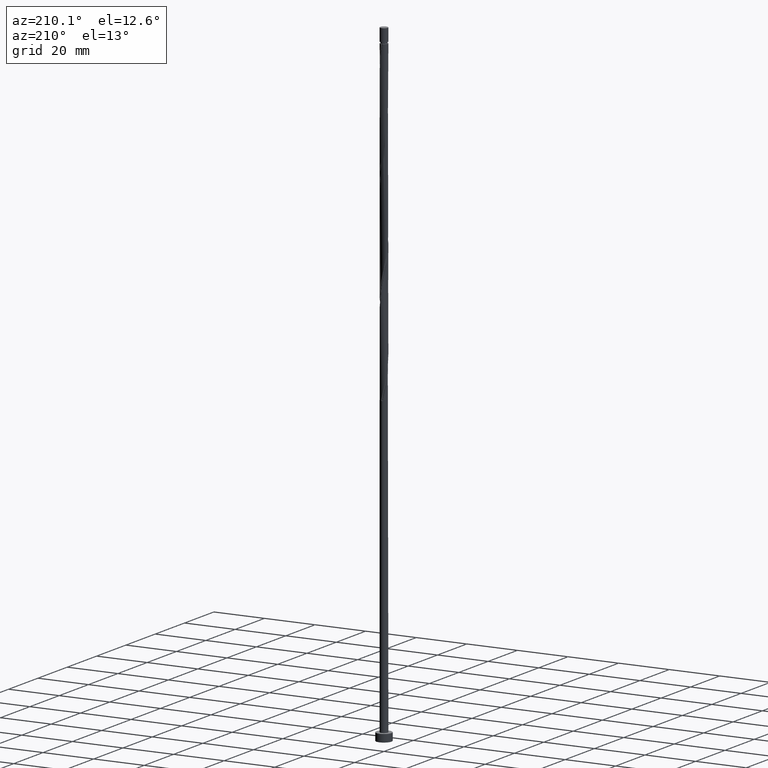
[diagram: clean part render]
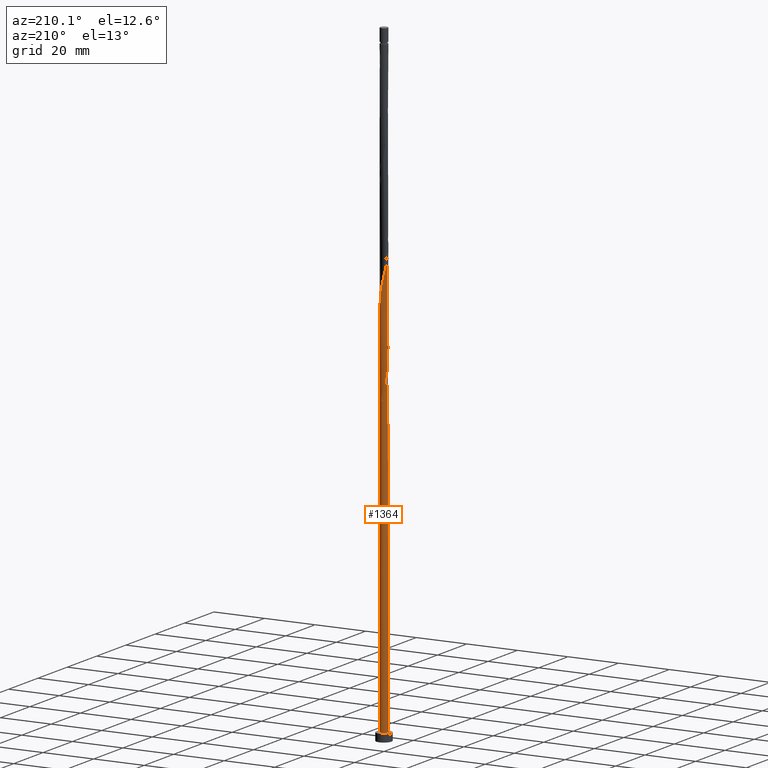
[diagram: same view with one face highlighted and labeled with its STEP entity id]
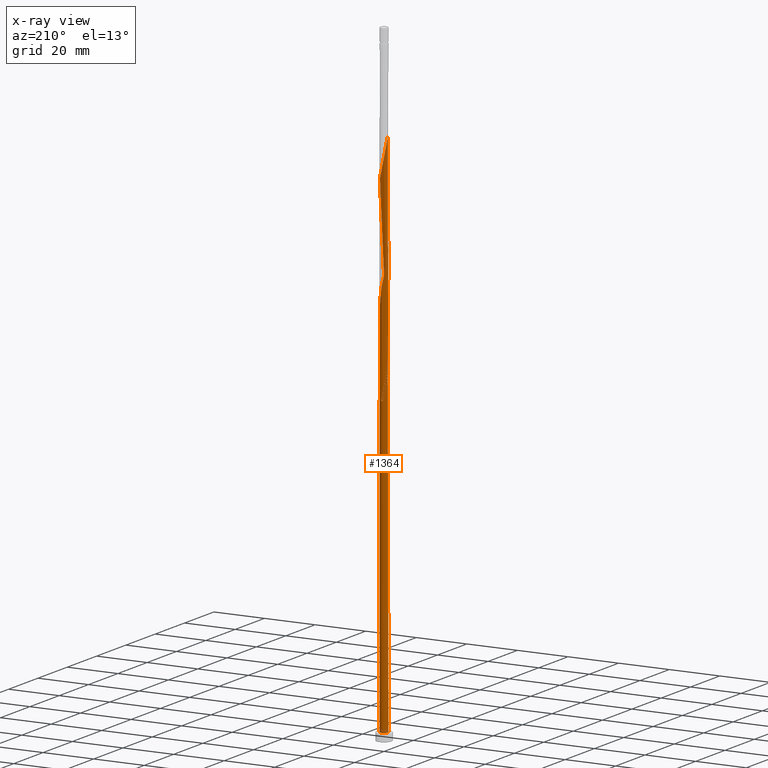
[diagram: x-ray of the same camera — body ghosted, the highlighted face saturated]
A machine part, auxiliary view. The second image highlights one B-rep face of the part: STEP entity #1364.
The next image is the same camera in x-ray: the body ghosted, the highlighted face saturated — about 0% of this face is hidden behind the body in this view.
In plain terms, the highlighted cylindrical surface (bore or boss wall) has radius 1.5 mm, axis along (-0, -0, -1).
Its self-contained STEP definition (entity closure, byte-faithful):
#9 =( BOUNDED_CURVE ( )  B_SPLINE_CURVE ( 2, ( #408, #1478, #1241, #603, #716, #79, #1516, #736, #1252, #320, #725, #1271, #1670, #481, #852, #1526, #1261, #1003, #1365, #696, #459, #1383, #1113, #1512, #1086, #197, #158, #982, #831, #295, #842, #590, #187, #433, #315, #1501, #304, #1258, #67, #820, #168, #1639, #1099, #176, #704, #1236, #45, #1491, #1359, #34, #568, #702, #959, #1096, #1499, #1110, #984, #822, #1238, #592, #1362, #572, #1373, #56, #962, #1088, #833, #47, #1115, #317, #343, #1324, #1410, #474, #340, #31, #618, #1677, #636, #1707, #1069, #924, #1320, #522, #249, #1188, #110, #530, #1051, #260, #894, #132, #263, #1195, #1521, #1596, #17, #923, #1614, #194, #1380, #720, #1719, #1466, #405, #1334, #597 ),
 .UNSPECIFIED., .F., .T. ) 
 B_SPLINE_CURVE_WITH_KNOTS ( ( 3, 2, 2, 2, 2, 2, 2, 2, 2, 2, 2, 2, 2, 2, 2, 2, 2, 2, 2, 2, 2, 2, 2, 2, 2, 2, 2, 2, 2, 2, 2, 2, 2, 2, 2, 2, 2, 2, 2, 2, 2, 2, 2, 2, 2, 2, 2, 2, 2, 2, 2, 2, 2, 3 ),
 ( 0.05452716259738311227, 0.05769230769230770939, 0.06730769230769229061, 0.07692307692307687184, 0.08653846153846156408, 0.09615384615384614531, 0.1057692307692307265, 0.1153846153846154188, 0.1250000000000000000, 0.1346153846153845812, 0.1442307692307692735, 0.1538461538461538547, 0.1634615384615384359, 0.1730769230769231282, 0.1826923076923077094, 0.1923076923076922906, 0.2019230769230768718, 0.2115384615384615641, 0.2211538461538461453, 0.2307692307692307265, 0.2403846153846154188, 0.2500000000000000000, 0.2596153846153845812, 0.2692307692307692735, 0.2788461538461538547, 0.2884615384615384359, 0.2980769230769231282, 0.3076923076923077094, 0.3173076923076922906, 0.3269230769230768718, 0.3365384615384615641, 0.3461538461538461453, 0.3557692307692307265, 0.3653846153846154188, 0.3750000000000000000, 0.3846153846153845812, 0.3942307692307692735, 0.4038461538461538547, 0.4134615384615384359, 0.4230769230769231282, 0.4326923076923077094, 0.4423076923076922906, 0.4519230769230768718, 0.4615384615384615641, 0.4711538461538461453, 0.4807692307692307265, 0.4903846153846154188, 0.5000000000000000000, 0.5096153846153845812, 0.5192307692307691624, 0.5288461538461538547, 0.5384615384615384359, 0.5480769230769231282, 0.5545271625973832164 ),
 .UNSPECIFIED. ) 
 CURVE ( )  GEOMETRIC_REPRESENTATION_ITEM ( )  RATIONAL_B_SPLINE_CURVE ( ( 0.9061636035683167112, 0.9069090390691052495, 0.9090909090909620183, 0.9024626128164653371, 0.9090909090909620183, 0.9024626128164653371, 0.9090909090909620183, 0.9024626128164653371, 0.9090909090909620183, 0.9024626128164653371, 0.9090909090909620183, 0.9024626128164653371, 0.9090909090909620183, 0.9024626128164653371, 0.9090909090909620183, 0.9024626128164653371, 0.9090909090909620183, 0.9024626128164653371, 0.9090909090909620183, 0.9024626128164653371, 0.9090909090909620183, 0.9024626128164653371, 0.9090909090909620183, 0.9024626128164653371, 0.9090909090909620183, 0.9024626128164653371, 0.9090909090909620183, 0.9024626128164653371, 0.9090909090909620183, 0.9024626128164653371, 0.9090909090909620183, 0.9024626128164653371, 0.9090909090909620183, 0.9024626128164653371, 0.9090909090909620183, 0.9024626128164653371, 0.9090909090909620183, 0.9024626128164653371, 0.9090909090909620183, 0.9024626128164653371, 0.9090909090909620183, 0.9024626128164653371, 0.9090909090909620183, 0.9024626128164653371, 0.9090909090909620183, 0.9024626128164653371, 0.9090909090909620183, 0.9024626128164653371, 0.9090909090909620183, 0.9024626128164653371, 0.9090909090909620183, 0.9024626128164653371, 0.9090909090909620183, 0.9024626128164653371, 0.9090909090909620183, 0.9024626128164653371, 0.9090909090909620183, 0.9024626128164653371, 0.9090909090909620183, 0.9024626128164653371, 0.9090909090909620183, 0.9024626128164653371, 0.9090909090909620183, 0.9024626128164653371, 0.9090909090909620183, 0.9024626128164653371, 0.9090909090909620183, 0.9024626128164653371, 0.9090909090909620183, 0.9024626128164653371, 0.9090909090909620183, 0.9024626128164653371, 0.9090909090909620183, 0.9024626128164653371, 0.9090909090909620183, 0.9024626128164653371, 0.9090909090909620183, 0.9024626128164653371, 0.9090909090909620183, 0.9024626128164653371, 0.9090909090909620183, 0.9024626128164653371, 0.9090909090909620183, 0.9024626128164653371, 0.9090909090909620183, 0.9024626128164653371, 0.9090909090909620183, 0.9024626128164653371, 0.9090909090909620183, 0.9024626128164653371, 0.9090909090909620183, 0.9024626128164653371, 0.9090909090909620183, 0.9024626128164653371, 0.9090909090909620183, 0.9024626128164653371, 0.9090909090909620183, 0.9024626128164653371, 0.9090909090909620183, 0.9024626128164653371, 0.9090909090909620183, 0.9024626128164653371, 0.9090909090909620183, 0.9024626128164653371, 0.9090909090909620183, 0.9046444828383219949, 0.9061636035683167112 ) ) 
 REPRESENTATION_ITEM ( '' )  );
#17 = CARTESIAN_POINT ( 'NONE',  ( -0.6416164996528295195, 1.355849647775614342, 204.3651243439056486 ) ) ;
#19 = CARTESIAN_POINT ( 'NONE',  ( -0.4188377764137478643, 1.440338473084985527, 122.6343551131364080 ) ) ;
#25 = ORIENTED_EDGE ( 'NONE', *, *, #371, .F. ) ;
#31 = CARTESIAN_POINT ( 'NONE',  ( 1.307785643856739455, -0.7568811863455723321, 187.5382012669825826 ) ) ;
#34 = CARTESIAN_POINT ( 'NONE',  ( -1.307785643856739455, 0.7568811863455717770, 166.7048679336491830 ) ) ;
#45 = CARTESIAN_POINT ( 'NONE',  ( -0.9474483493949323876, 1.162902242335452918, 164.3010217798030794 ) ) ;
#47 = CARTESIAN_POINT ( 'NONE',  ( 0.1200059157952639288, -1.506244004368417988, 181.1279448567262023 ) ) ;
#56 = CARTESIAN_POINT ( 'NONE',  ( -0.5937265303270506944, -1.389482359624428121, 177.9228166515979126 ) ) ;
#61 = EDGE_CURVE ( 'NONE', #1239, #570, #445, .T. ) ;
#67 = CARTESIAN_POINT ( 'NONE',  ( 0.4188377764137496961, 1.440338473084987303, 157.8907653695467275 ) ) ;
#79 = CARTESIAN_POINT ( 'NONE',  ( -1.365807925316976146, -0.6463289655144700552, 131.4484576772389914 ) ) ;
#81 = DIRECTION ( 'NONE',  ( -0.000000000000000000, -0.000000000000000000, -1.000000000000000000 ) ) ;
#110 = CARTESIAN_POINT ( 'NONE',  ( 1.040221096925479927, 1.080712759946489854, 196.3523038310851518 ) ) ;
#128 = DIRECTION ( 'NONE',  ( -1.000000000000000000, 0.000000000000000000, 0.000000000000000000 ) ) ;
#132 = CARTESIAN_POINT ( 'NONE',  ( 0.2439490225004475321, 1.491194586545546708, 200.3587140874954287 ) ) ;
#158 = CARTESIAN_POINT ( 'NONE',  ( 1.480322099070742858, -0.2421703594637400481, 148.2753807541620006 ) ) ;
#164 = CARTESIAN_POINT ( 'NONE',  ( -1.480322099070742858, 0.2421703594637399370, 127.4420474208287146 ) ) ;
#168 = CARTESIAN_POINT ( 'NONE',  ( 0.06197155335259257880, 1.498719295456981904, 159.4933294721108155 ) ) ;
#176 = CARTESIAN_POINT ( 'NONE',  ( -0.4769865464687110257, 1.433755995631585511, 161.8971756259569190 ) ) ;
#180 = DIRECTION ( 'NONE',  ( 1.000000000000000000, 0.000000000000000000, 0.000000000000000000 ) ) ;
#183 = CARTESIAN_POINT ( 'NONE',  ( -0.2984962311319874773, 1.470000000000002416, 119.4292269080082178 ) ) ;
#185 = VERTEX_POINT ( 'NONE', #183 ) ;
#187 = CARTESIAN_POINT ( 'NONE',  ( 1.268625654424380134, 0.8003680084413162810, 153.0830730618543498 ) ) ;
#194 = CARTESIAN_POINT ( 'NONE',  ( -1.088650245952916817, 1.047861184751263330, 206.7689704977517806 ) ) ;
#197 = CARTESIAN_POINT ( 'NONE',  ( 1.450917293747007619, -0.4219140045406496453, 147.4740987028800419 ) ) ;
#203 = DIRECTION ( 'NONE',  ( 1.000000000000000000, 0.000000000000000000, 0.000000000000000000 ) ) ;
#249 = CARTESIAN_POINT ( 'NONE',  ( 1.268625654424380134, 0.8003680084413162810, 194.7497397285210639 ) ) ;
#260 = CARTESIAN_POINT ( 'NONE',  ( 0.5937265303270506944, 1.389482359624428121, 198.7561499849313122 ) ) ;
#263 = CARTESIAN_POINT ( 'NONE',  ( 0.06197155335259257880, 1.498719295456981904, 201.1599961387775011 ) ) ;
#274 = EDGE_CURVE ( 'NONE', #580, #1360, #9, .T. ) ;
#287 = ORIENTED_EDGE ( 'NONE', *, *, #1582, .F. ) ;
#295 = CARTESIAN_POINT ( 'NONE',  ( 1.480796674992555850, 0.3006885894952761595, 150.6792269080081894 ) ) ;
#304 = CARTESIAN_POINT ( 'NONE',  ( 0.7513626703231125470, 1.298250414074622272, 156.2882012669825542 ) ) ;
#315 = CARTESIAN_POINT ( 'NONE',  ( 1.040221096925479927, 1.080712759946489854, 154.6856371644184662 ) ) ;
#317 = CARTESIAN_POINT ( 'NONE',  ( 0.4769865464687106371, -1.433755995631585511, 182.7305089592902618 ) ) ;
#320 = CARTESIAN_POINT ( 'NONE',  ( -0.9089988103191739555, -1.207018468524816424, 134.6535858823671958 ) ) ;
#340 = CARTESIAN_POINT ( 'NONE',  ( 1.198217944904827581, -0.9023711855484176647, 186.7369192157005386 ) ) ;
#343 = CARTESIAN_POINT ( 'NONE',  ( 0.6416164996528290754, -1.355849647775614786, 183.5317910105723627 ) ) ;
#357 = VERTEX_POINT ( 'NONE', #1656 ) ;
#371 = EDGE_CURVE ( 'NONE', #580, #570, #1611, .T. ) ;
#380 = LINE ( 'NONE', #648, #1089 ) ;
#392 = CARTESIAN_POINT ( 'NONE',  ( -0.2439490225004463386, 1.491194586545544043, 121.8330730618543356 ) ) ;
#400 = CARTESIAN_POINT ( 'NONE',  ( -1.198217944904828025, 0.9023711855484176647, 124.2369192157005386 ) ) ;
#405 = CARTESIAN_POINT ( 'NONE',  ( -1.480322099070742858, 0.2421703594637399370, 210.7753807541620859 ) ) ;
#407 = CARTESIAN_POINT ( 'NONE',  ( -1.268625654424377913, 0.8003680084413155038, 127.4420474208287146 ) ) ;
#408 = CARTESIAN_POINT ( 'NONE',  ( -1.500000000000002220, -1.802190593260978711E-15, 128.5179716987830147 ) ) ;
#410 = CARTESIAN_POINT ( 'NONE',  ( -1.450917293747007619, 0.4219140045406489237, 126.6407653695466564 ) ) ;
#417 = CARTESIAN_POINT ( 'NONE',  ( -1.040221096925477262, 1.080712759946488521, 125.8394833182646266 ) ) ;
#420 = CARTESIAN_POINT ( 'NONE',  ( -0.4769865464687110257, 1.433755995631585511, 120.2305089592902760 ) ) ;
#423 = DIRECTION ( 'NONE',  ( -0.000000000000000000, -0.000000000000000000, -1.000000000000000000 ) ) ;
#428 = CARTESIAN_POINT ( 'NONE',  ( -0.8062464528369477357, 1.277943299919642950, 121.8330730618543782 ) ) ;
#433 = CARTESIAN_POINT ( 'NONE',  ( 1.171443383531785010, 0.9544070513681620627, 153.8843551131363938 ) ) ;
#445 = CIRCLE ( 'NONE', #504, 1.500000000000000222 ) ;
#459 = CARTESIAN_POINT ( 'NONE',  ( 0.9474483493949322765, -1.162902242335452918, 143.4676884464697935 ) ) ;
#474 = CARTESIAN_POINT ( 'NONE',  ( 1.088650245952916595, -1.047861184751263552, 185.9356371644184378 ) ) ;
#481 = CARTESIAN_POINT ( 'NONE',  ( -0.2439490225004473933, -1.491194586545546708, 137.8587140874954002 ) ) ;
#504 = AXIS2_PLACEMENT_3D ( 'NONE', #569, #1097, #203 ) ;
#522 = CARTESIAN_POINT ( 'NONE',  ( 1.365807925316976146, 0.6463289655144695001, 193.9484576772389630 ) ) ;
#530 = CARTESIAN_POINT ( 'NONE',  ( 0.9089988103191743996, 1.207018468524815757, 197.1535858823671674 ) ) ;
#531 = CARTESIAN_POINT ( 'NONE',  ( 0.1200059157952646366, 1.506244004368415768, 120.2305089592902618 ) ) ;
#568 = CARTESIAN_POINT ( 'NONE',  ( -1.379351468801873315, 0.5893975954431104336, 167.5061499849313122 ) ) ;
#569 = CARTESIAN_POINT ( 'NONE',  ( 0.000000000000000000, 0.000000000000000000, 3.000000000000000000 ) ) ;
#570 = VERTEX_POINT ( 'NONE', #579 ) ;
#572 = CARTESIAN_POINT ( 'NONE',  ( -0.9089988103191739555, -1.207018468524816424, 176.3202525490338246 ) ) ;
#579 = CARTESIAN_POINT ( 'NONE',  ( -1.500000000000000222, 0.000000000000000000, 3.000000000000000000 ) ) ;
#580 = VERTEX_POINT ( 'NONE', #1412 ) ;
#583 = ORIENTED_EDGE ( 'NONE', *, *, #1058, .T. ) ;
#590 = CARTESIAN_POINT ( 'NONE',  ( 1.365807925316976146, 0.6463289655144695001, 152.2817910105723627 ) ) ;
#592 = CARTESIAN_POINT ( 'NONE',  ( -1.171443383531784788, -0.9544070513681625068, 174.7176884464697935 ) ) ;
#597 = CARTESIAN_POINT ( 'NONE',  ( -1.500000000000002220, -4.112883096653684897E-16, 211.8513050321163291 ) ) ;
#603 = CARTESIAN_POINT ( 'NONE',  ( -1.480796674992555850, -0.3006885894952763261, 129.8458935746749034 ) ) ;
#618 = CARTESIAN_POINT ( 'NONE',  ( 1.379351468801873315, -0.5893975954431104336, 188.3394833182646551 ) ) ;
#619 =( BOUNDED_CURVE ( )  B_SPLINE_CURVE ( 2, ( #925, #813, #916, #807, #1467, #666, #407, #683, #417, #1214, #1606, #1337, #19, #392, #1598, #531, #940 ),
 .UNSPECIFIED., .F., .T. ) 
 B_SPLINE_CURVE_WITH_KNOTS ( ( 3, 2, 2, 2, 2, 2, 2, 2, 3 ),
 ( 0.9295271625973829943, 0.9326923076923077094, 0.9423076923076922906, 0.9519230769230768718, 0.9615384615384615641, 0.9711538461538461453, 0.9807692307692307265, 0.9903846153846154188, 1.000000000000000000 ),
 .UNSPECIFIED. ) 
 CURVE ( )  GEOMETRIC_REPRESENTATION_ITEM ( )  RATIONAL_B_SPLINE_CURVE ( ( 0.9061636035683109380, 0.9069090390690994763, 0.9090909090909563561, 0.9024626128164596750, 0.9090909090909563561, 0.9024626128164596750, 0.9090909090909563561, 0.9024626128164596750, 0.9090909090909563561, 0.9024626128164596750, 0.9090909090909563561, 0.9024626128164596750, 0.9090909090909563561, 0.9024626128164596750, 0.9090909090909563561, 0.9024626128164596750, 0.9090909090909563561 ) ) 
 REPRESENTATION_ITEM ( '' )  );
#623 = DIRECTION ( 'NONE',  ( -0.000000000000000000, -0.000000000000000000, -1.000000000000000000 ) ) ;
#636 = CARTESIAN_POINT ( 'NONE',  ( 1.480322099070742858, -0.2421703594637400481, 189.9420474208287146 ) ) ;
#648 = CARTESIAN_POINT ( 'NONE',  ( -1.500000000000000222, 0.000000000000000000, 250.0000000000000000 ) ) ;
#666 = CARTESIAN_POINT ( 'NONE',  ( -1.365807925316973703, 0.6463289655144691670, 128.2433294721107870 ) ) ;
#678 = CARTESIAN_POINT ( 'NONE',  ( -1.500000000000002220, -1.802190593260978711E-15, 128.5179716987830147 ) ) ;
#683 = CARTESIAN_POINT ( 'NONE',  ( -1.171443383531782345, 0.9544070513681616186, 126.6407653695466564 ) ) ;
#696 = CARTESIAN_POINT ( 'NONE',  ( 0.8062464528369475136, -1.277943299919642950, 142.6664063951877495 ) ) ;
#702 = CARTESIAN_POINT ( 'NONE',  ( -1.450917293747007619, 0.4219140045406489237, 168.3074320362133278 ) ) ;
#704 = CARTESIAN_POINT ( 'NONE',  ( -0.6416164996528295195, 1.355849647775614342, 162.6984576772389630 ) ) ;
#708 = CARTESIAN_POINT ( 'NONE',  ( 1.500000000000000222, 0.000000000000000000, 3.000000000000000000 ) ) ;
#716 = CARTESIAN_POINT ( 'NONE',  ( -1.423302300154765776, -0.4735087775048729131, 130.6471756259569759 ) ) ;
#720 = CARTESIAN_POINT ( 'NONE',  ( -1.307785643856739455, 0.7568811863455717770, 208.3715346003159254 ) ) ;
#725 = CARTESIAN_POINT ( 'NONE',  ( -0.7513626703231123249, -1.298250414074622494, 135.4548679336492114 ) ) ;
#727 = DIRECTION ( 'NONE',  ( 0.000000000000000000, 0.000000000000000000, 1.000000000000000000 ) ) ;
#736 = CARTESIAN_POINT ( 'NONE',  ( -1.171443383531784788, -0.9544070513681625068, 133.0510217798031078 ) ) ;
#738 = FACE_OUTER_BOUND ( 'NONE', #1421, .T. ) ;
#782 = AXIS2_PLACEMENT_3D ( 'NONE', #825, #727, #180 ) ;
#798 = ORIENTED_EDGE ( 'NONE', *, *, #1012, .T. ) ;
#804 = ORIENTED_EDGE ( 'NONE', *, *, #954, .F. ) ;
#807 = CARTESIAN_POINT ( 'NONE',  ( -1.480796674992553186, 0.3006885894952762706, 129.8458935746748466 ) ) ;
#813 = CARTESIAN_POINT ( 'NONE',  ( -1.500000000000000222, 0.05965969550514797076, 130.9096445349338467 ) ) ;
#820 = CARTESIAN_POINT ( 'NONE',  ( 0.2439490225004475321, 1.491194586545546708, 158.6920474208287715 ) ) ;
#822 = CARTESIAN_POINT ( 'NONE',  ( -1.365807925316976146, -0.6463289655144700552, 173.1151243439056771 ) ) ;
#825 = CARTESIAN_POINT ( 'NONE',  ( 0.000000000000000000, 0.000000000000000000, 3.000000000000000000 ) ) ;
#831 = CARTESIAN_POINT ( 'NONE',  ( 1.495261789693516530, 0.1191309375542222576, 149.8779448567261738 ) ) ;
#833 = CARTESIAN_POINT ( 'NONE',  ( -0.06197155335259172532, -1.498719295456981904, 180.3266628054441867 ) ) ;
#837 = CYLINDRICAL_SURFACE ( 'NONE', #1592, 1.500000000000000222 ) ;
#842 = CARTESIAN_POINT ( 'NONE',  ( 1.423302300154765998, 0.4735087775048722469, 151.4805089592902618 ) ) ;
#845 = CARTESIAN_POINT ( 'NONE',  ( -1.500000000000002220, -4.112883096653684897E-16, 211.8513050321163291 ) ) ;
#852 = CARTESIAN_POINT ( 'NONE',  ( -0.06197155335259172532, -1.498719295456981904, 138.6599961387774442 ) ) ;
#858 = VECTOR ( 'NONE', #423, 1000.000000000000000 ) ;
#894 = CARTESIAN_POINT ( 'NONE',  ( 0.4188377764137496961, 1.440338473084987303, 199.5574320362133562 ) ) ;
#915 = AXIS2_PLACEMENT_3D ( 'NONE', #1055, #1591, #128 ) ;
#916 = CARTESIAN_POINT ( 'NONE',  ( -1.495261789693514087, 0.1191309375542232707, 130.6471756259569190 ) ) ;
#923 = CARTESIAN_POINT ( 'NONE',  ( -0.8062464528369477357, 1.277943299919642950, 205.1664063951876926 ) ) ;
#924 = CARTESIAN_POINT ( 'NONE',  ( 1.480796674992555850, 0.3006885894952761595, 192.3458935746748750 ) ) ;
#925 = CARTESIAN_POINT ( 'NONE',  ( -1.499999999999999778, -1.794712623994346953E-15, 131.1738154505667637 ) ) ;
#940 = CARTESIAN_POINT ( 'NONE',  ( 0.2984962311319880324, 1.469999999999999529, 119.4292269080082036 ) ) ;
#949 = EDGE_CURVE ( 'NONE', #1360, #357, #380, .T. ) ;
#954 = EDGE_CURVE ( 'NONE', #185, #580, #1194, .T. ) ;
#956 = CARTESIAN_POINT ( 'NONE',  ( -1.307785643856739455, 0.7568811863455717770, 125.0382012669825684 ) ) ;
#959 = CARTESIAN_POINT ( 'NONE',  ( -1.480322099070742858, 0.2421703594637399370, 169.1087140874954002 ) ) ;
#962 = CARTESIAN_POINT ( 'NONE',  ( -0.4188377764137488635, -1.440338473084987303, 178.7240987028800703 ) ) ;
#976 = CIRCLE ( 'NONE', #915, 1.500000000000000222 ) ;
#982 = CARTESIAN_POINT ( 'NONE',  ( 1.509726904394477653, -0.06242671438683039531, 149.0766628054441014 ) ) ;
#984 = CARTESIAN_POINT ( 'NONE',  ( -1.423302300154765776, -0.4735087775048729131, 172.3138422926236331 ) ) ;
#1003 = CARTESIAN_POINT ( 'NONE',  ( 0.4769865464687106371, -1.433755995631585511, 141.0638422926235762 ) ) ;
#1012 = EDGE_CURVE ( 'NONE', #185, #1260, #976, .T. ) ;
#1051 = CARTESIAN_POINT ( 'NONE',  ( 0.7513626703231125470, 1.298250414074622272, 197.9548679336491546 ) ) ;
#1055 = CARTESIAN_POINT ( 'NONE',  ( 0.000000000000000000, 0.000000000000000000, 119.4292269080082178 ) ) ;
#1058 = EDGE_CURVE ( 'NONE', #570, #1239, #1204, .T. ) ;
#1069 = CARTESIAN_POINT ( 'NONE',  ( 1.495261789693516530, 0.1191309375542222576, 191.5446115233928026 ) ) ;
#1072 = CARTESIAN_POINT ( 'NONE',  ( -1.379351468801873315, 0.5893975954431104336, 125.8394833182646266 ) ) ;
#1086 = CARTESIAN_POINT ( 'NONE',  ( 1.379351468801873315, -0.5893975954431104336, 146.6728166515979694 ) ) ;
#1088 = CARTESIAN_POINT ( 'NONE',  ( -0.2439490225004473933, -1.491194586545546708, 179.5253807541620859 ) ) ;
#1089 = VECTOR ( 'NONE', #623, 1000.000000000000000 ) ;
#1096 = CARTESIAN_POINT ( 'NONE',  ( -1.509726904394477875, 0.06242671438683049245, 169.9099961387774727 ) ) ;
#1097 = DIRECTION ( 'NONE',  ( 0.000000000000000000, 0.000000000000000000, 1.000000000000000000 ) ) ;
#1099 = CARTESIAN_POINT ( 'NONE',  ( -0.2984962311319874217, 1.470000000000002416, 161.0958935746748750 ) ) ;
#1104 = CARTESIAN_POINT ( 'NONE',  ( 0.2984962311319879769, 1.469999999999999529, 119.4292269080082178 ) ) ;
#1110 = CARTESIAN_POINT ( 'NONE',  ( -1.480796674992555850, -0.3006885894952763261, 171.5125602413415891 ) ) ;
#1113 = CARTESIAN_POINT ( 'NONE',  ( 1.198217944904827581, -0.9023711855484176647, 145.0702525490339099 ) ) ;
#1115 = CARTESIAN_POINT ( 'NONE',  ( 0.2984962311319876993, -1.470000000000002416, 181.9292269080082178 ) ) ;
#1188 = CARTESIAN_POINT ( 'NONE',  ( 1.171443383531785010, 0.9544070513681620627, 195.5510217798030510 ) ) ;
#1194 =( BOUNDED_CURVE ( )  B_SPLINE_CURVE ( 2, ( #1348, #420, #1716, #428, #1323, #1355, #400, #956, #1072, #410, #164, #1470, #678 ),
 .UNSPECIFIED., .F., .T. ) 
 B_SPLINE_CURVE_WITH_KNOTS ( ( 3, 2, 2, 2, 2, 2, 3 ),
 ( 0.000000000000000000, 0.009615384615384581224, 0.01923076923076927347, 0.02884615384615385469, 0.03846153846153843592, 0.04807692307692313510, 0.05452716259738311227 ),
 .UNSPECIFIED. ) 
 CURVE ( )  GEOMETRIC_REPRESENTATION_ITEM ( )  RATIONAL_B_SPLINE_CURVE ( ( 0.9090909090909620183, 0.9024626128164653371, 0.9090909090909620183, 0.9024626128164653371, 0.9090909090909620183, 0.9024626128164653371, 0.9090909090909620183, 0.9024626128164653371, 0.9090909090909620183, 0.9024626128164653371, 0.9090909090909620183, 0.9046444828383219949, 0.9061636035683167112 ) ) 
 REPRESENTATION_ITEM ( '' )  );
#1195 = CARTESIAN_POINT ( 'NONE',  ( -0.1200059157952637623, 1.506244004368418210, 201.9612781900595166 ) ) ;
#1204 = CIRCLE ( 'NONE', #782, 1.500000000000000222 ) ;
#1214 = CARTESIAN_POINT ( 'NONE',  ( -0.9089988103191720681, 1.207018468524815313, 125.0382012669825400 ) ) ;
#1236 = CARTESIAN_POINT ( 'NONE',  ( -0.8062464528369477357, 1.277943299919642950, 163.4997397285210639 ) ) ;
#1238 = CARTESIAN_POINT ( 'NONE',  ( -1.268625654424380134, -0.8003680084413161699, 173.9164063951876642 ) ) ;
#1239 = VERTEX_POINT ( 'NONE', #708 ) ;
#1241 = CARTESIAN_POINT ( 'NONE',  ( -1.495261789693516530, -0.1191309375542227433, 129.0446115233928595 ) ) ;
#1252 = CARTESIAN_POINT ( 'NONE',  ( -1.040221096925479483, -1.080712759946489854, 133.8523038310851803 ) ) ;
#1258 = CARTESIAN_POINT ( 'NONE',  ( 0.5937265303270506944, 1.389482359624428121, 157.0894833182646266 ) ) ;
#1260 = VERTEX_POINT ( 'NONE', #1104 ) ;
#1261 = CARTESIAN_POINT ( 'NONE',  ( 0.2984962311319876993, -1.470000000000002416, 140.2625602413415606 ) ) ;
#1271 = CARTESIAN_POINT ( 'NONE',  ( -0.5937265303270506944, -1.389482359624428121, 136.2561499849312554 ) ) ;
#1273 = CARTESIAN_POINT ( 'NONE',  ( 0.000000000000000000, 0.000000000000000000, 250.0000000000000000 ) ) ;
#1320 = CARTESIAN_POINT ( 'NONE',  ( 1.423302300154765998, 0.4735087775048722469, 193.1471756259569759 ) ) ;
#1323 = CARTESIAN_POINT ( 'NONE',  ( -0.9474483493949323876, 1.162902242335452918, 122.6343551131364507 ) ) ;
#1324 = CARTESIAN_POINT ( 'NONE',  ( 0.8062464528369475136, -1.277943299919642950, 184.3330730618543498 ) ) ;
#1334 = CARTESIAN_POINT ( 'NONE',  ( -1.500000000000001998, 0.1218846578055692714, 211.3116042947680171 ) ) ;
#1337 = CARTESIAN_POINT ( 'NONE',  ( -0.5937265303270490291, 1.389482359624426566, 123.4356371644184520 ) ) ;
#1342 = CARTESIAN_POINT ( 'NONE',  ( -1.500000000000000222, 0.000000000000000000, 250.0000000000000000 ) ) ;
#1348 = CARTESIAN_POINT ( 'NONE',  ( -0.2984962311319875328, 1.470000000000002416, 119.4292269080082178 ) ) ;
#1355 = CARTESIAN_POINT ( 'NONE',  ( -1.088650245952916817, 1.047861184751263330, 123.4356371644184804 ) ) ;
#1359 = CARTESIAN_POINT ( 'NONE',  ( -1.198217944904828025, 0.9023711855484176647, 165.9035858823672243 ) ) ;
#1360 = VERTEX_POINT ( 'NONE', #845 ) ;
#1362 = CARTESIAN_POINT ( 'NONE',  ( -1.040221096925479483, -1.080712759946489854, 175.5189704977518375 ) ) ;
#1364 = ADVANCED_FACE ( 'NONE', ( #738 ), #837, .T. ) ;
#1365 = CARTESIAN_POINT ( 'NONE',  ( 0.6416164996528290754, -1.355849647775614786, 141.8651243439056486 ) ) ;
#1373 = CARTESIAN_POINT ( 'NONE',  ( -0.7513626703231123249, -1.298250414074622494, 177.1215346003159254 ) ) ;
#1380 = CARTESIAN_POINT ( 'NONE',  ( -1.198217944904828025, 0.9023711855484176647, 207.5702525490338530 ) ) ;
#1383 = CARTESIAN_POINT ( 'NONE',  ( 1.088650245952916595, -1.047861184751263552, 144.2689704977518375 ) ) ;
#1410 = CARTESIAN_POINT ( 'NONE',  ( 0.9474483493949322765, -1.162902242335452918, 185.1343551131364507 ) ) ;
#1412 = CARTESIAN_POINT ( 'NONE',  ( -1.500000000000002220, -1.802190593260978711E-15, 128.5179716987830147 ) ) ;
#1421 = EDGE_LOOP ( 'NONE', ( #1514, #1651, #1460, #583, #1622, #25, #804, #798, #287 ) ) ;
#1460 = ORIENTED_EDGE ( 'NONE', *, *, #371, .T. ) ;
#1466 = CARTESIAN_POINT ( 'NONE',  ( -1.450917293747007619, 0.4219140045406489237, 209.9740987028800703 ) ) ;
#1467 = CARTESIAN_POINT ( 'NONE',  ( -1.423302300154763333, 0.4735087775048729686, 129.0446115233928595 ) ) ;
#1470 = CARTESIAN_POINT ( 'NONE',  ( -1.500000000000001776, 0.1218846578055712004, 127.9782709614347311 ) ) ;
#1478 = CARTESIAN_POINT ( 'NONE',  ( -1.500000000000002665, -0.05965969550514968467, 128.7821426144160171 ) ) ;
#1491 = CARTESIAN_POINT ( 'NONE',  ( -1.088650245952916817, 1.047861184751263330, 165.1023038310851234 ) ) ;
#1499 = CARTESIAN_POINT ( 'NONE',  ( -1.495261789693516530, -0.1191309375542227433, 170.7112781900594882 ) ) ;
#1501 = CARTESIAN_POINT ( 'NONE',  ( 0.9089988103191743996, 1.207018468524815757, 155.4869192157005102 ) ) ;
#1512 = CARTESIAN_POINT ( 'NONE',  ( 1.307785643856739455, -0.7568811863455723321, 145.8715346003159539 ) ) ;
#1514 = ORIENTED_EDGE ( 'NONE', *, *, #949, .F. ) ;
#1516 = CARTESIAN_POINT ( 'NONE',  ( -1.268625654424380134, -0.8003680084413161699, 132.2497397285210639 ) ) ;
#1521 = CARTESIAN_POINT ( 'NONE',  ( -0.2984962311319874217, 1.470000000000002416, 202.7625602413415606 ) ) ;
#1526 = CARTESIAN_POINT ( 'NONE',  ( 0.1200059157952639288, -1.506244004368417988, 139.4612781900594882 ) ) ;
#1582 = EDGE_CURVE ( 'NONE', #357, #1260, #619, .T. ) ;
#1591 = DIRECTION ( 'NONE',  ( 0.000000000000000000, -0.000000000000000000, -1.000000000000000000 ) ) ;
#1592 = AXIS2_PLACEMENT_3D ( 'NONE', #1273, #81, #1654 ) ;
#1596 = CARTESIAN_POINT ( 'NONE',  ( -0.4769865464687110257, 1.433755995631585511, 203.5638422926235194 ) ) ;
#1598 = CARTESIAN_POINT ( 'NONE',  ( -0.06197155335259088571, 1.498719295456980127, 121.0317910105723200 ) ) ;
#1606 = CARTESIAN_POINT ( 'NONE',  ( -0.7513626703231105486, 1.298250414074620496, 124.2369192157005244 ) ) ;
#1611 = LINE ( 'NONE', #1342, #858 ) ;
#1614 = CARTESIAN_POINT ( 'NONE',  ( -0.9474483493949323876, 1.162902242335452918, 205.9676884464697935 ) ) ;
#1622 = ORIENTED_EDGE ( 'NONE', *, *, #61, .T. ) ;
#1639 = CARTESIAN_POINT ( 'NONE',  ( -0.1200059157952637623, 1.506244004368418210, 160.2946115233928310 ) ) ;
#1651 = ORIENTED_EDGE ( 'NONE', *, *, #274, .F. ) ;
#1654 = DIRECTION ( 'NONE',  ( -1.000000000000000000, 0.000000000000000000, 0.000000000000000000 ) ) ;
#1656 = CARTESIAN_POINT ( 'NONE',  ( -1.499999999999999778, -1.794712623994346953E-15, 131.1738154505667637 ) ) ;
#1670 = CARTESIAN_POINT ( 'NONE',  ( -0.4188377764137488635, -1.440338473084987303, 137.0574320362133562 ) ) ;
#1677 = CARTESIAN_POINT ( 'NONE',  ( 1.450917293747007619, -0.4219140045406496453, 189.1407653695466706 ) ) ;
#1707 = CARTESIAN_POINT ( 'NONE',  ( 1.509726904394477653, -0.06242671438683039531, 190.7433294721108155 ) ) ;
#1716 = CARTESIAN_POINT ( 'NONE',  ( -0.6416164996528295195, 1.355849647775614342, 121.0317910105723485 ) ) ;
#1719 = CARTESIAN_POINT ( 'NONE',  ( -1.379351468801873315, 0.5893975954431104336, 209.1728166515979979 ) ) ;